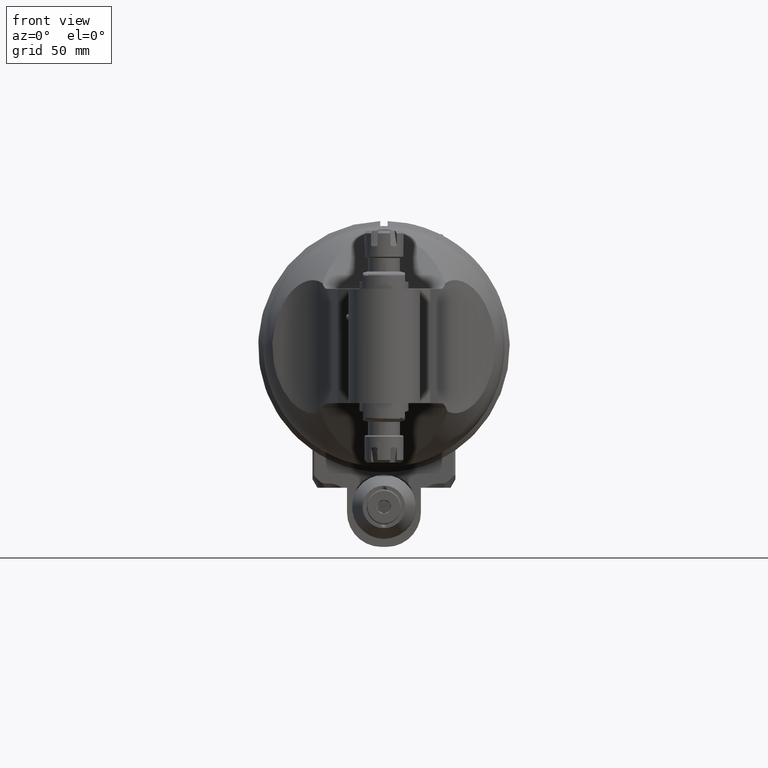
[diagram: clean part render]
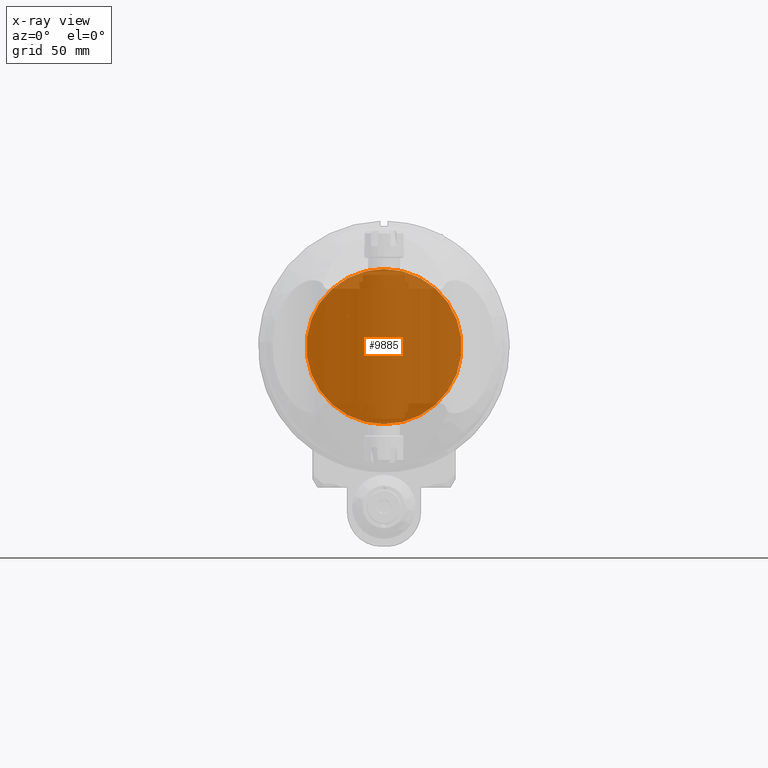
[diagram: x-ray — body ghosted, one internal face saturated and labeled with its STEP entity id]
A machine part, front view, then the same camera in x-ray: the body is ghosted and one INTERNAL B-rep face — a face not visible from any outside direction — is saturated and labeled: STEP entity #9885.
In plain terms, the highlighted planar face has unit normal (-0, 1, 0).
Its self-contained STEP definition (entity closure, byte-faithful):
#827=CIRCLE('',#10630,31.5);
#1319=FACE_OUTER_BOUND('',#1954,.T.);
#1954=EDGE_LOOP('',(#6886));
#4124=VERTEX_POINT('',#15080);
#5189=EDGE_CURVE('',#4124,#4124,#827,.T.);
#6886=ORIENTED_EDGE('',*,*,#5189,.T.);
#9569=PLANE('',#10631);
#9885=ADVANCED_FACE('',(#1319),#9569,.T.);
#10630=AXIS2_PLACEMENT_3D('',#15082,#12028,#12029);
#10631=AXIS2_PLACEMENT_3D('',#15083,#12030,#12031);
#12028=DIRECTION('center_axis',(0.,1.,0.));
#12029=DIRECTION('ref_axis',(0.,0.,1.));
#12030=DIRECTION('center_axis',(0.,1.,0.));
#12031=DIRECTION('ref_axis',(0.,0.,-1.));
#15080=CARTESIAN_POINT('',(0.,148.,-31.5));
#15082=CARTESIAN_POINT('Origin',(0.,148.,0.));
#15083=CARTESIAN_POINT('Origin',(0.,148.,-30.75));